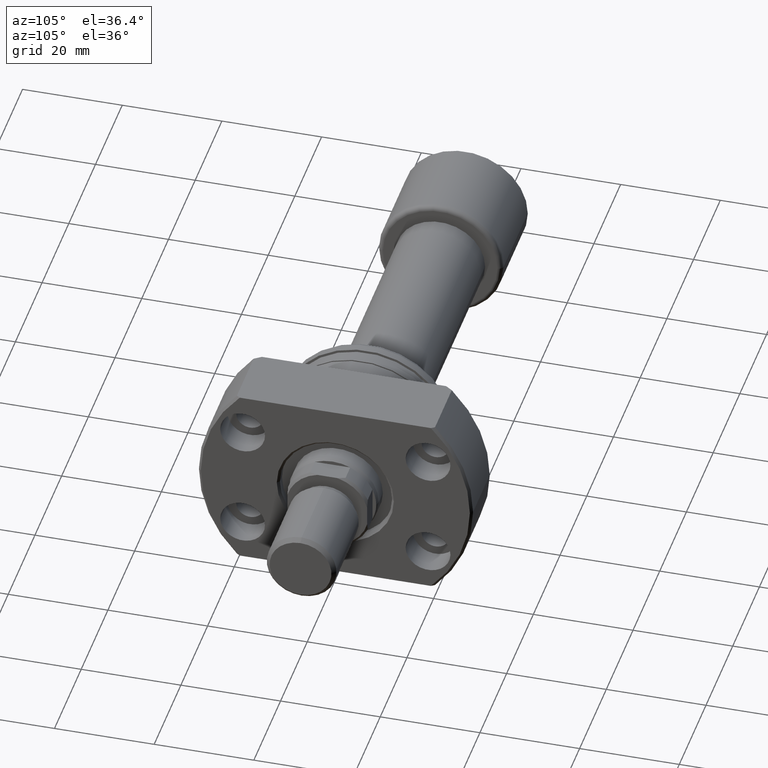
[diagram: clean part render]
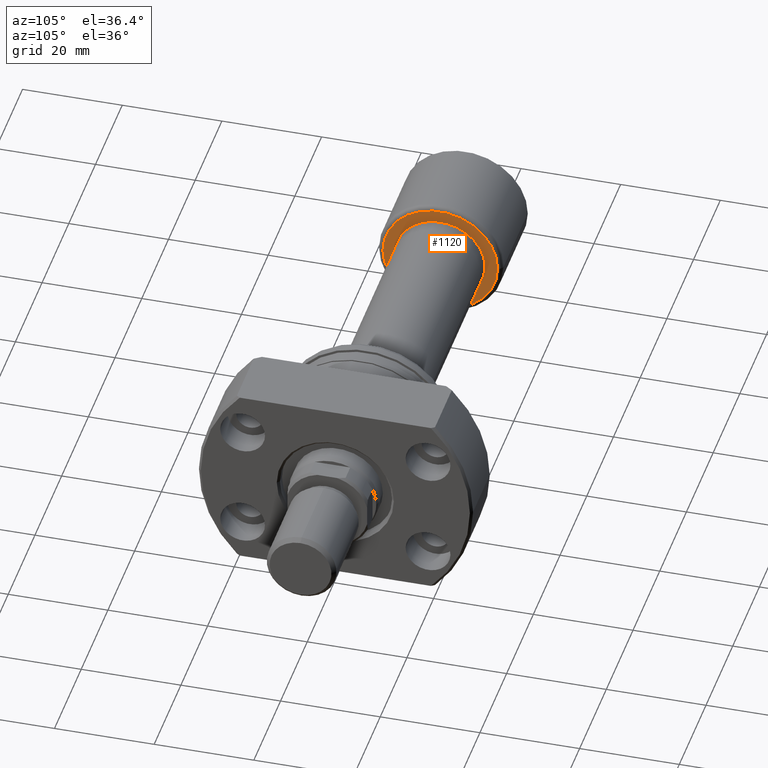
[diagram: same view with one face highlighted and labeled with its STEP entity id]
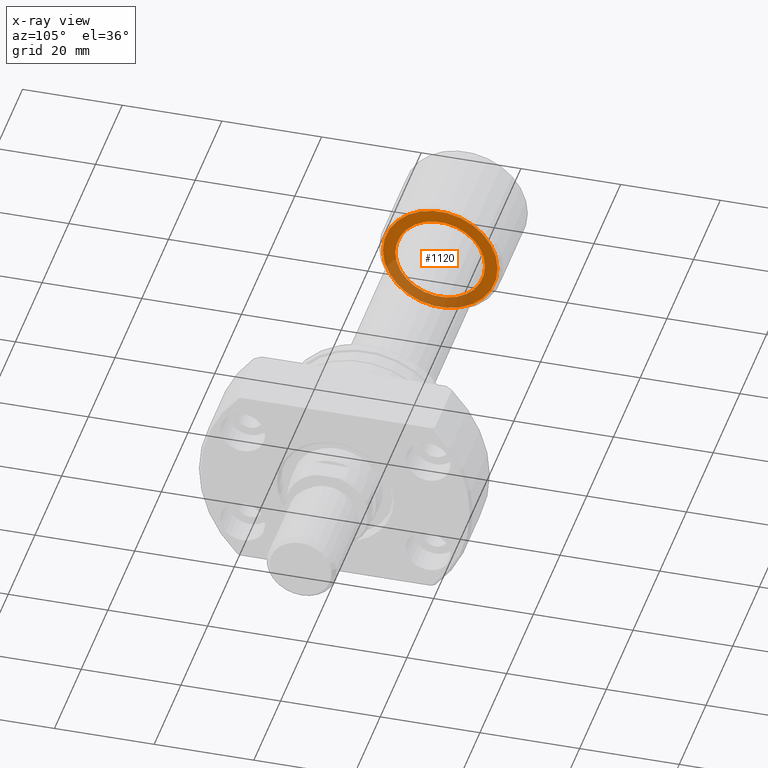
[diagram: x-ray of the same camera — body ghosted, the highlighted face saturated]
A machine part, auxiliary view. The second image highlights one B-rep face of the part: STEP entity #1120.
The next image is the same camera in x-ray: the body ghosted, the highlighted face saturated — about 31% of this face is hidden behind the body in this view.
In plain terms, the highlighted planar face has unit normal (-1, -0, 0).
Its self-contained STEP definition (entity closure, byte-faithful):
#210 = EDGE_LOOP ( 'NONE', ( #3285, #1665 ) ) ;
#367 = CIRCLE ( 'NONE', #1564, 11.50000000000000000 ) ;
#369 = AXIS2_PLACEMENT_3D ( 'NONE', #2400, #1587, #2649 ) ;
#421 = FACE_BOUND ( 'NONE', #3502, .T. ) ;
#441 = CARTESIAN_POINT ( 'NONE',  ( 20.39999999999999503, -11.50000000000000000, 0.000000000000000000 ) ) ;
#537 = EDGE_CURVE ( 'NONE', #2451, #1355, #1971, .T. ) ;
#751 = CARTESIAN_POINT ( 'NONE',  ( 20.39999999999999503, -9.000000000000000000, 0.000000000000000000 ) ) ;
#793 = EDGE_CURVE ( 'NONE', #2041, #2419, #367, .T. ) ;
#843 = DIRECTION ( 'NONE',  ( 0.000000000000000000, -1.000000000000000000, 0.000000000000000000 ) ) ;
#1080 = CARTESIAN_POINT ( 'NONE',  ( 20.39999999999999503, 2.181866337020893623E-16, 0.000000000000000000 ) ) ;
#1099 = ORIENTED_EDGE ( 'NONE', *, *, #2904, .T. ) ;
#1120 = ADVANCED_FACE ( 'NONE', ( #1551, #421 ), #1515, .F. ) ;
#1141 = CARTESIAN_POINT ( 'NONE',  ( 20.39999999999999503, 2.181866337020893623E-16, 0.000000000000000000 ) ) ;
#1355 = VERTEX_POINT ( 'NONE', #751 ) ;
#1414 = DIRECTION ( 'NONE',  ( 0.000000000000000000, -1.000000000000000000, 0.000000000000000000 ) ) ;
#1417 = EDGE_CURVE ( 'NONE', #2419, #2041, #1565, .T. ) ;
#1515 = PLANE ( 'NONE',  #369 ) ;
#1551 = FACE_OUTER_BOUND ( 'NONE', #210, .T. ) ;
#1564 = AXIS2_PLACEMENT_3D ( 'NONE', #1080, #3569, #1881 ) ;
#1565 = CIRCLE ( 'NONE', #1738, 11.50000000000000000 ) ;
#1587 = DIRECTION ( 'NONE',  ( -1.000000000000000000, -1.069542322069065801E-17, 0.000000000000000000 ) ) ;
#1665 = ORIENTED_EDGE ( 'NONE', *, *, #793, .F. ) ;
#1673 = AXIS2_PLACEMENT_3D ( 'NONE', #1976, #3091, #1414 ) ;
#1738 = AXIS2_PLACEMENT_3D ( 'NONE', #2751, #2200, #843 ) ;
#1881 = DIRECTION ( 'NONE',  ( 0.000000000000000000, -1.000000000000000000, 0.000000000000000000 ) ) ;
#1971 = CIRCLE ( 'NONE', #1673, 9.000000000000000000 ) ;
#1976 = CARTESIAN_POINT ( 'NONE',  ( 20.39999999999999503, 2.181866337020893623E-16, 0.000000000000000000 ) ) ;
#1984 = ORIENTED_EDGE ( 'NONE', *, *, #537, .T. ) ;
#2041 = VERTEX_POINT ( 'NONE', #2504 ) ;
#2179 = AXIS2_PLACEMENT_3D ( 'NONE', #1141, #3388, #2573 ) ;
#2200 = DIRECTION ( 'NONE',  ( -1.000000000000000000, -1.069542322069065801E-17, -0.000000000000000000 ) ) ;
#2400 = CARTESIAN_POINT ( 'NONE',  ( 20.39999999999999503, -9.000000000000000000, 0.000000000000000000 ) ) ;
#2419 = VERTEX_POINT ( 'NONE', #441 ) ;
#2451 = VERTEX_POINT ( 'NONE', #3033 ) ;
#2504 = CARTESIAN_POINT ( 'NONE',  ( 20.39999999999999503, 11.50000000000000000, 1.469576158976823947E-15 ) ) ;
#2573 = DIRECTION ( 'NONE',  ( 0.000000000000000000, -1.000000000000000000, 0.000000000000000000 ) ) ;
#2649 = DIRECTION ( 'NONE',  ( 1.069542322069065801E-17, -1.000000000000000000, 0.000000000000000000 ) ) ;
#2751 = CARTESIAN_POINT ( 'NONE',  ( 20.39999999999999503, 2.181866337020893623E-16, 0.000000000000000000 ) ) ;
#2904 = EDGE_CURVE ( 'NONE', #1355, #2451, #3484, .T. ) ;
#3033 = CARTESIAN_POINT ( 'NONE',  ( 20.39999999999999503, 9.000000000000000000, 1.102182119232623630E-15 ) ) ;
#3091 = DIRECTION ( 'NONE',  ( -1.000000000000000000, -1.069542322069065801E-17, -0.000000000000000000 ) ) ;
#3285 = ORIENTED_EDGE ( 'NONE', *, *, #1417, .F. ) ;
#3388 = DIRECTION ( 'NONE',  ( -1.000000000000000000, -1.069542322069065801E-17, -0.000000000000000000 ) ) ;
#3484 = CIRCLE ( 'NONE', #2179, 9.000000000000000000 ) ;
#3502 = EDGE_LOOP ( 'NONE', ( #1099, #1984 ) ) ;
#3569 = DIRECTION ( 'NONE',  ( -1.000000000000000000, -1.069542322069065801E-17, -0.000000000000000000 ) ) ;